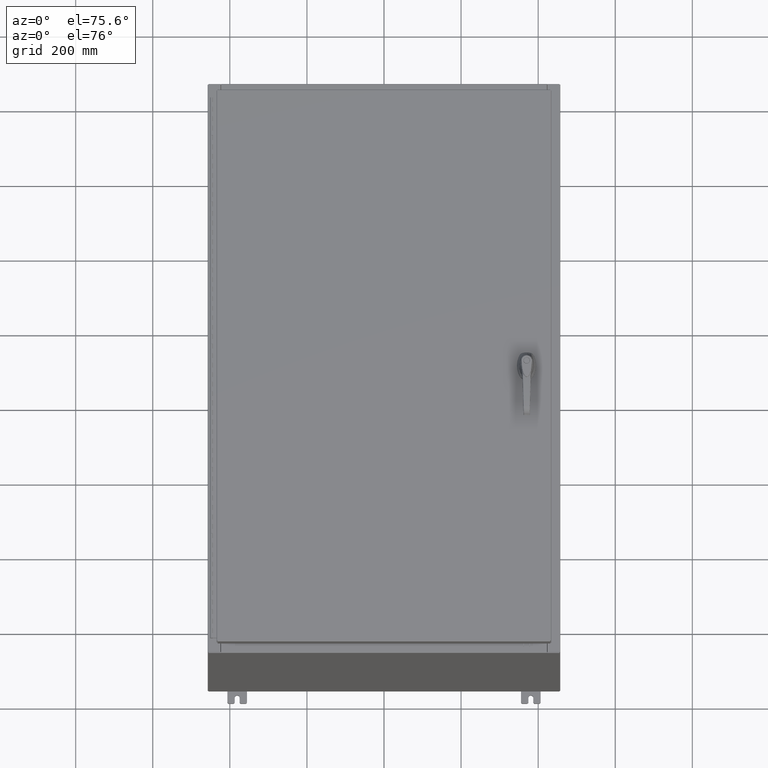
[diagram: clean part render]
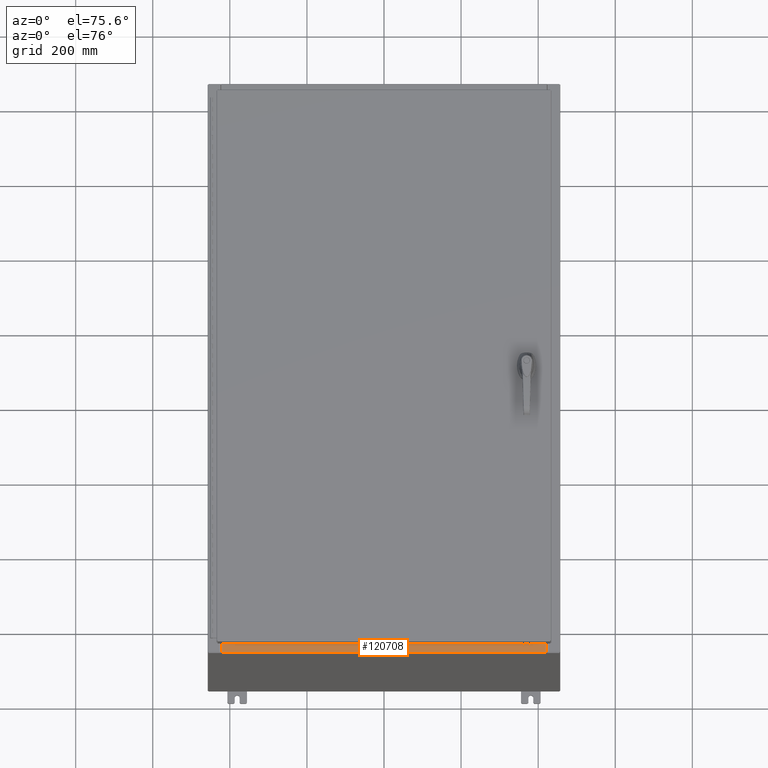
[diagram: same view with one face highlighted and labeled with its STEP entity id]
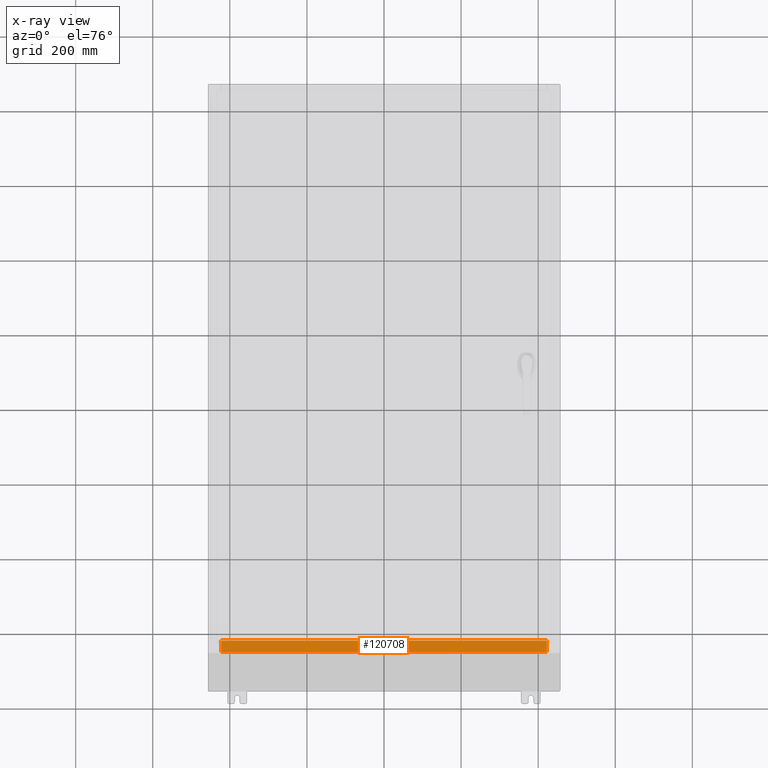
[diagram: x-ray of the same camera — body ghosted, the highlighted face saturated]
A machine part, auxiliary view. The second image highlights one B-rep face of the part: STEP entity #120708.
The next image is the same camera in x-ray: the body ghosted, the highlighted face saturated — about 0% of this face is hidden behind the body in this view.
In plain terms, the highlighted planar face has unit normal (-0, -0, 1).
Its self-contained STEP definition (entity closure, byte-faithful):
#9841 = LINE ( 'NONE', #95920, #98057 ) ;
#10367 = EDGE_CURVE ( 'NONE', #36812, #94203, #66930, .T. ) ;
#11330 = VERTEX_POINT ( 'NONE', #116514 ) ;
#13499 = DIRECTION ( 'NONE',  ( -1.000000000000000000, -6.568047492761434800E-017, 6.568047492761457000E-017 ) ) ;
#17518 = PLANE ( 'NONE',  #70177 ) ;
#21076 = VECTOR ( 'NONE', #13499, 39.37007874015748100 ) ;
#25340 = ORIENTED_EDGE ( 'NONE', *, *, #10367, .F. ) ;
#30671 = VECTOR ( 'NONE', #100176, 39.37007874015748100 ) ;
#35247 = CARTESIAN_POINT ( 'NONE',  ( 5.308514113925181600E-016, -0.08770000000000136000, 8.000000000000001800 ) ) ;
#36812 = VERTEX_POINT ( 'NONE', #125219 ) ;
#37320 = VECTOR ( 'NONE', #101579, 39.37007874015748100 ) ;
#39762 = CARTESIAN_POINT ( 'NONE',  ( 5.250912337413644300E-016, 2.852545452309695200E-014, 8.000000000000001800 ) ) ;
#50828 = DIRECTION ( 'NONE',  ( 0.0000000000000000000, -1.000000000000000000, 3.566381192773190000E-015 ) ) ;
#52681 = CARTESIAN_POINT ( 'NONE',  ( -16.63720000000000000, -0.08770000000000136000, 8.000000000000001800 ) ) ;
#63026 = CARTESIAN_POINT ( 'NONE',  ( 16.63720000000000000, -1.287300000000000300, 8.000000000000003600 ) ) ;
#64300 = EDGE_CURVE ( 'NONE', #11330, #115561, #9841, .T. ) ;
#66930 = LINE ( 'NONE', #122426, #30671 ) ;
#68087 = ORIENTED_EDGE ( 'NONE', *, *, #64300, .F. ) ;
#70177 = AXIS2_PLACEMENT_3D ( 'NONE', #39762, #117060, #50828 ) ;
#79550 = EDGE_CURVE ( 'NONE', #94203, #11330, #129045, .T. ) ;
#88915 = ORIENTED_EDGE ( 'NONE', *, *, #136908, .T. ) ;
#89574 = ORIENTED_EDGE ( 'NONE', *, *, #79550, .F. ) ;
#94203 = VERTEX_POINT ( 'NONE', #63026 ) ;
#95920 = CARTESIAN_POINT ( 'NONE',  ( -16.63720000000000000, -0.07469999999999973900, 8.000000000000001800 ) ) ;
#98057 = VECTOR ( 'NONE', #107036, 39.37007874015748100 ) ;
#100176 = DIRECTION ( 'NONE',  ( -0.0000000000000000000, -1.000000000000000000, 3.566381192773190000E-015 ) ) ;
#101579 = DIRECTION ( 'NONE',  ( -1.000000000000000000, 0.0000000000000000000, 0.0000000000000000000 ) ) ;
#107036 = DIRECTION ( 'NONE',  ( -0.0000000000000000000, 1.000000000000000000, -3.566381192773190000E-015 ) ) ;
#115561 = VERTEX_POINT ( 'NONE', #52681 ) ;
#116189 = LINE ( 'NONE', #35247, #21076 ) ;
#116514 = CARTESIAN_POINT ( 'NONE',  ( -16.63720000000000000, -1.287299999999999400, 8.000000000000007100 ) ) ;
#117060 = DIRECTION ( 'NONE',  ( 6.568047492761433500E-017, 3.566381192773190000E-015, 1.000000000000000000 ) ) ;
#120708 = ADVANCED_FACE ( 'NONE', ( #123912 ), #17518, .T. ) ;
#122426 = CARTESIAN_POINT ( 'NONE',  ( 16.63720000000000000, -1.300299999999999800, 8.000000000000003600 ) ) ;
#123912 = FACE_OUTER_BOUND ( 'NONE', #130914, .T. ) ;
#125219 = CARTESIAN_POINT ( 'NONE',  ( 16.63720000000000400, -0.08770000000000102700, 8.000000000000000000 ) ) ;
#129045 = LINE ( 'NONE', #134482, #37320 ) ;
#130914 = EDGE_LOOP ( 'NONE', ( #68087, #89574, #25340, #88915 ) ) ;
#134482 = CARTESIAN_POINT ( 'NONE',  ( 16.63720000000000400, -1.287300000000000300, 8.000000000000003600 ) ) ;
#136908 = EDGE_CURVE ( 'NONE', #36812, #115561, #116189, .T. ) ;